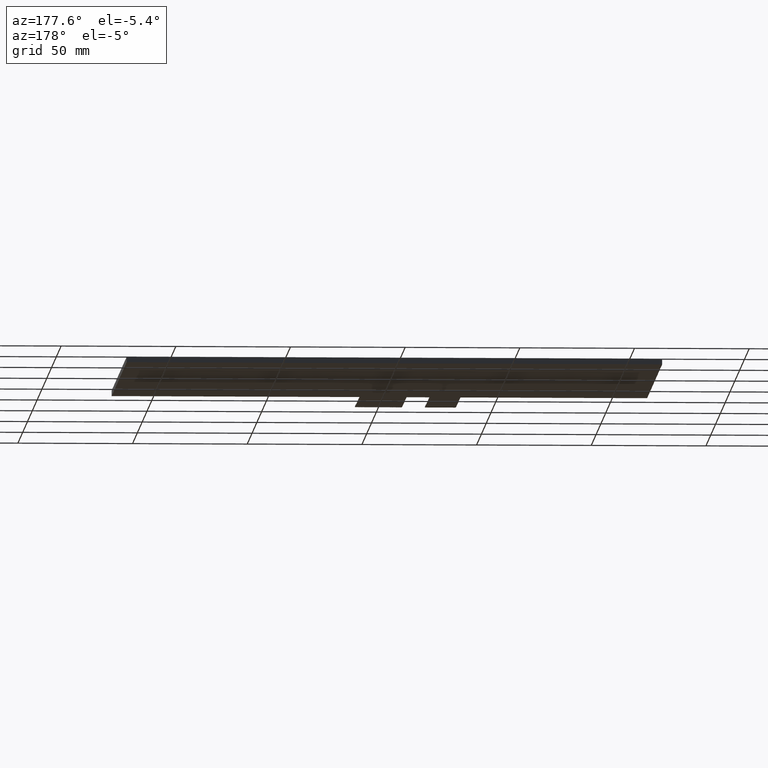
[diagram: clean part render]
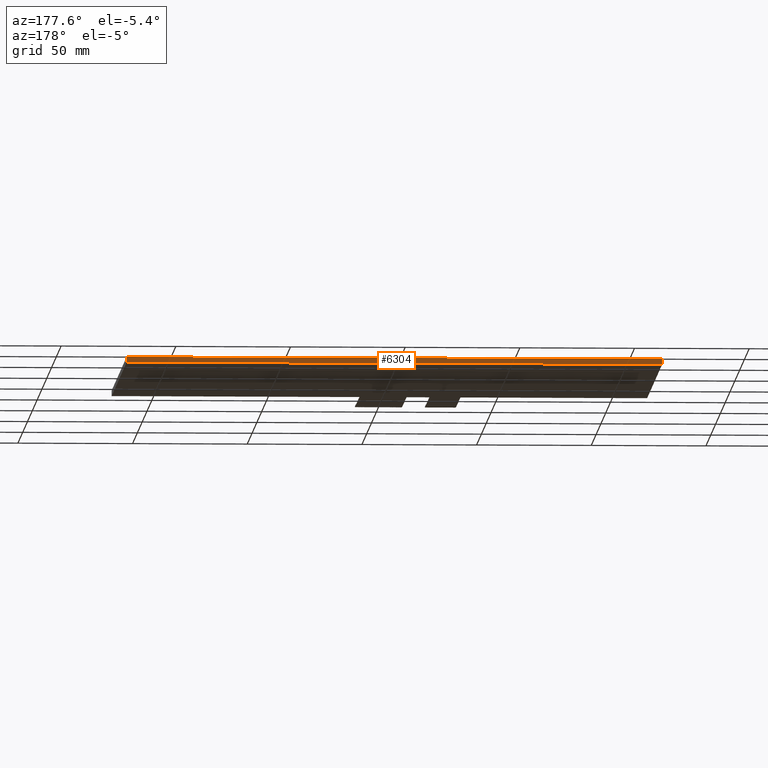
[diagram: same view with one face highlighted and labeled with its STEP entity id]
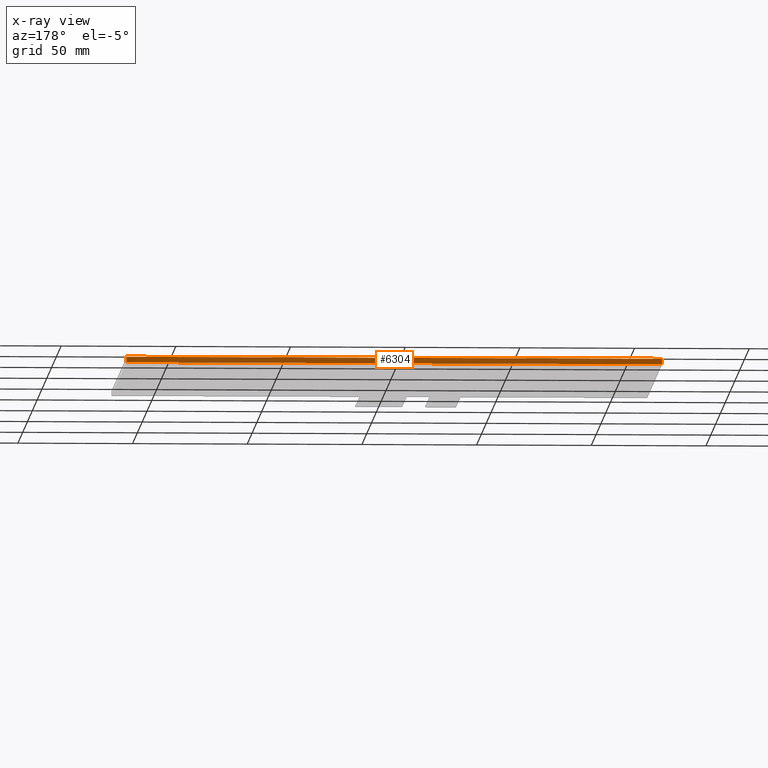
[diagram: x-ray of the same camera — body ghosted, the highlighted face saturated]
A machine part, auxiliary view. The second image highlights one B-rep face of the part: STEP entity #6304.
The next image is the same camera in x-ray: the body ghosted, the highlighted face saturated — about 0% of this face is hidden behind the body in this view.
In plain terms, the highlighted planar face has unit normal (0, 1, 0).
Its self-contained STEP definition (entity closure, byte-faithful):
#366=PLANE('',#6634);
#668=FACE_OUTER_BOUND('',#974,.T.);
#974=EDGE_LOOP('',(#5989,#5990,#5991,#5992));
#1845=LINE('',#9898,#2725);
#1849=LINE('',#9906,#2729);
#1855=LINE('',#9917,#2735);
#1856=LINE('',#9919,#2736);
#2725=VECTOR('',#8115,10.);
#2729=VECTOR('',#8121,10.);
#2735=VECTOR('',#8131,10.);
#2736=VECTOR('',#8134,10.);
#3329=VERTEX_POINT('',#9896);
#3330=VERTEX_POINT('',#9897);
#3333=VERTEX_POINT('',#9905);
#3336=VERTEX_POINT('',#9915);
#4213=EDGE_CURVE('',#3329,#3330,#1845,.T.);
#4217=EDGE_CURVE('',#3330,#3333,#1849,.T.);
#4223=EDGE_CURVE('',#3329,#3336,#1855,.T.);
#4224=EDGE_CURVE('',#3333,#3336,#1856,.T.);
#5989=ORIENTED_EDGE('',*,*,#4213,.F.);
#5990=ORIENTED_EDGE('',*,*,#4223,.T.);
#5991=ORIENTED_EDGE('',*,*,#4224,.F.);
#5992=ORIENTED_EDGE('',*,*,#4217,.F.);
#6304=ADVANCED_FACE('',(#668),#366,.T.);
#6634=AXIS2_PLACEMENT_3D('',#9918,#8132,#8133);
#8115=DIRECTION('',(-1.,0.,0.));
#8121=DIRECTION('',(0.,0.,-1.));
#8131=DIRECTION('',(0.,0.,-1.));
#8132=DIRECTION('center_axis',(0.,1.,0.));
#8133=DIRECTION('ref_axis',(1.,0.,0.));
#8134=DIRECTION('',(1.,0.,0.));
#9896=CARTESIAN_POINT('',(116.22,75.6,0.));
#9897=CARTESIAN_POINT('',(-117.28,75.6,0.));
#9898=CARTESIAN_POINT('',(116.22,75.6,0.));
#9905=CARTESIAN_POINT('',(-117.28,75.6,-2.35));
#9906=CARTESIAN_POINT('',(-117.28,75.6,0.));
#9915=CARTESIAN_POINT('',(116.22,75.6,-2.35));
#9917=CARTESIAN_POINT('',(116.22,75.6,0.));
#9918=CARTESIAN_POINT('Origin',(-117.28,75.6,0.));
#9919=CARTESIAN_POINT('',(116.22,75.6,-2.35));